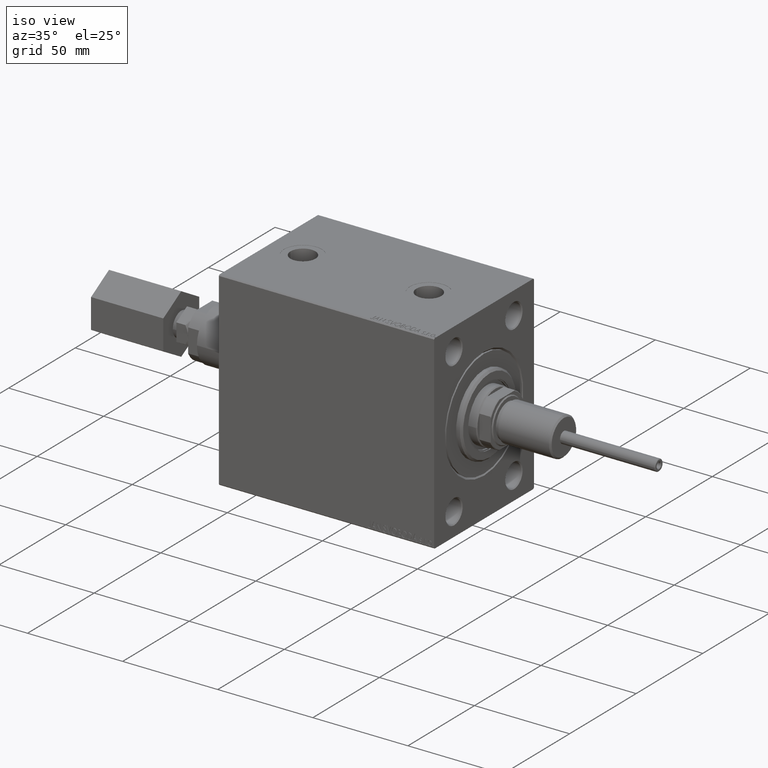
[diagram: clean part render]
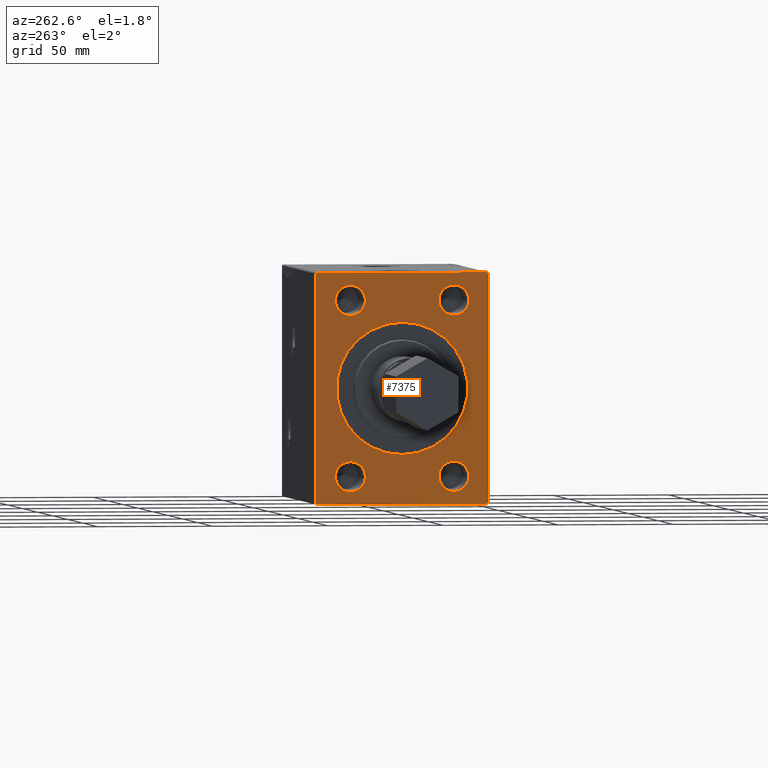
[diagram: tour spotlight — one face highlighted and labeled with its STEP entity id]
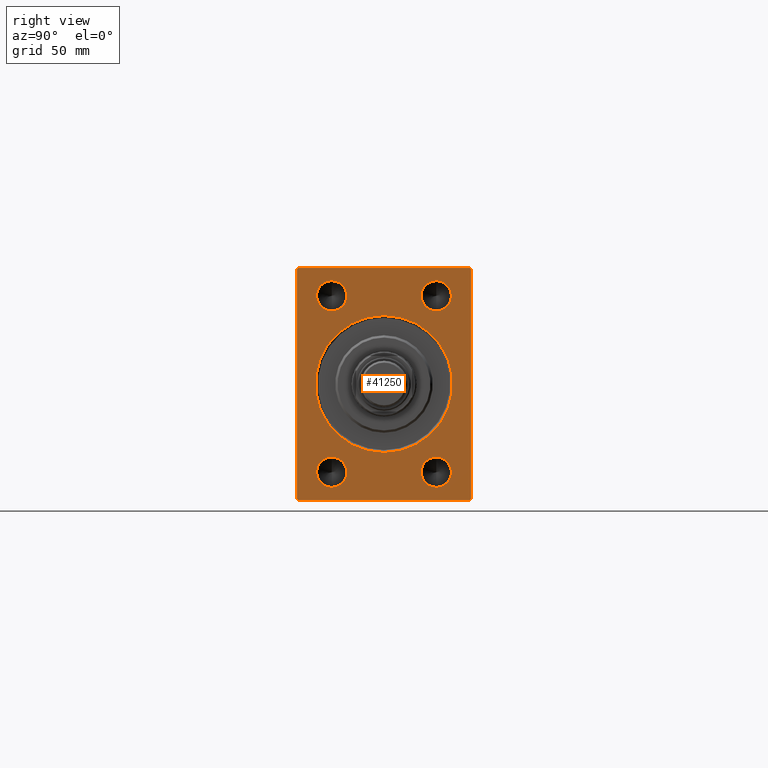
[diagram: tour spotlight — one face highlighted and labeled with its STEP entity id]
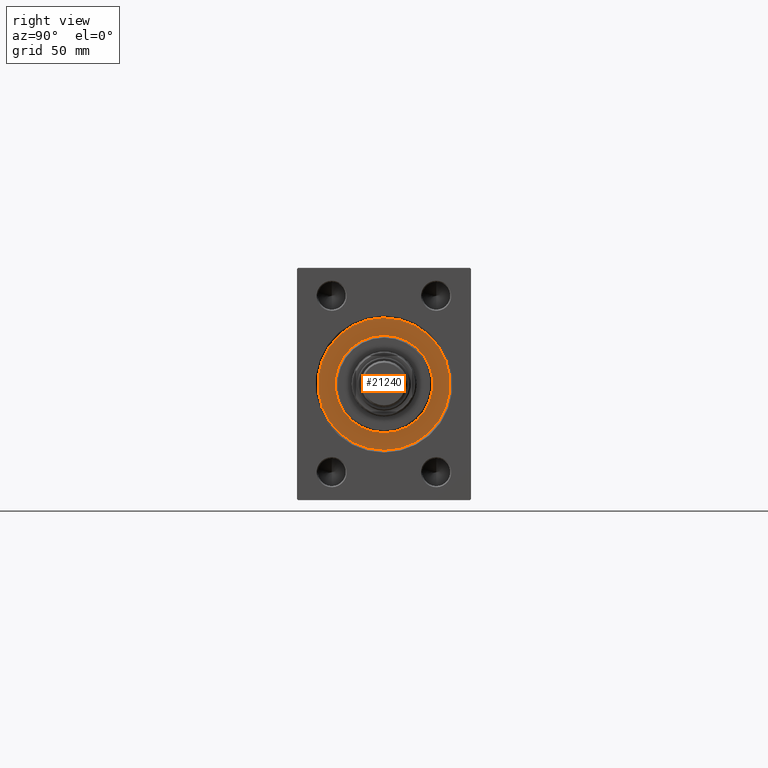
[diagram: tour spotlight — one face highlighted and labeled with its STEP entity id]
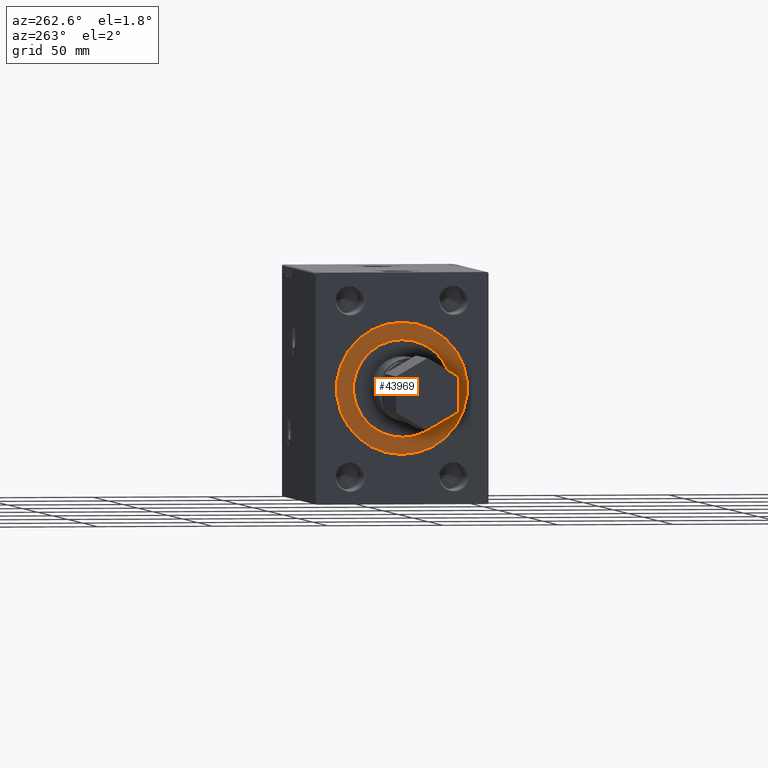
[diagram: tour spotlight — one face highlighted and labeled with its STEP entity id]
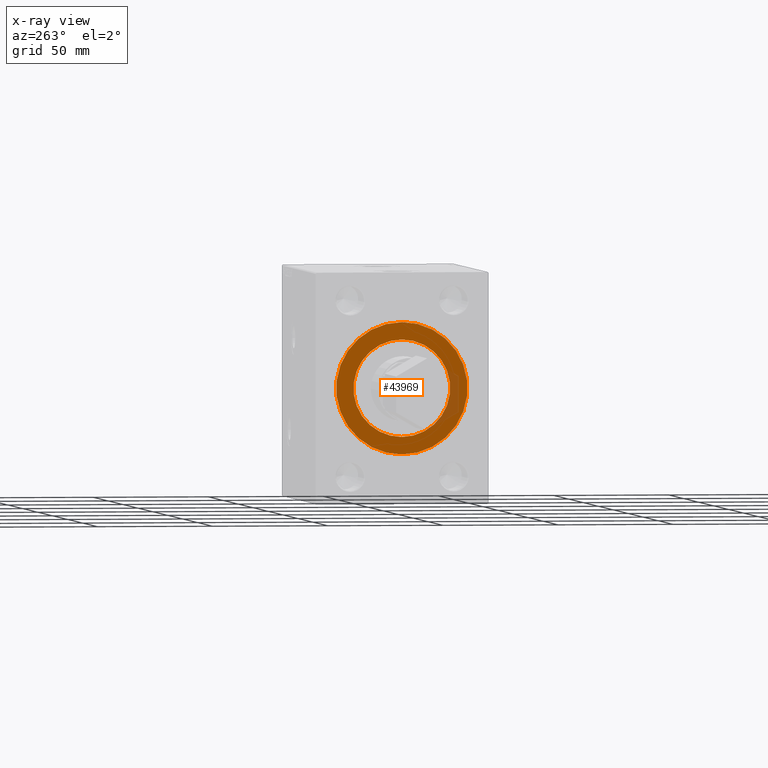
[diagram: x-ray of the same camera — body ghosted, this tour face saturated]
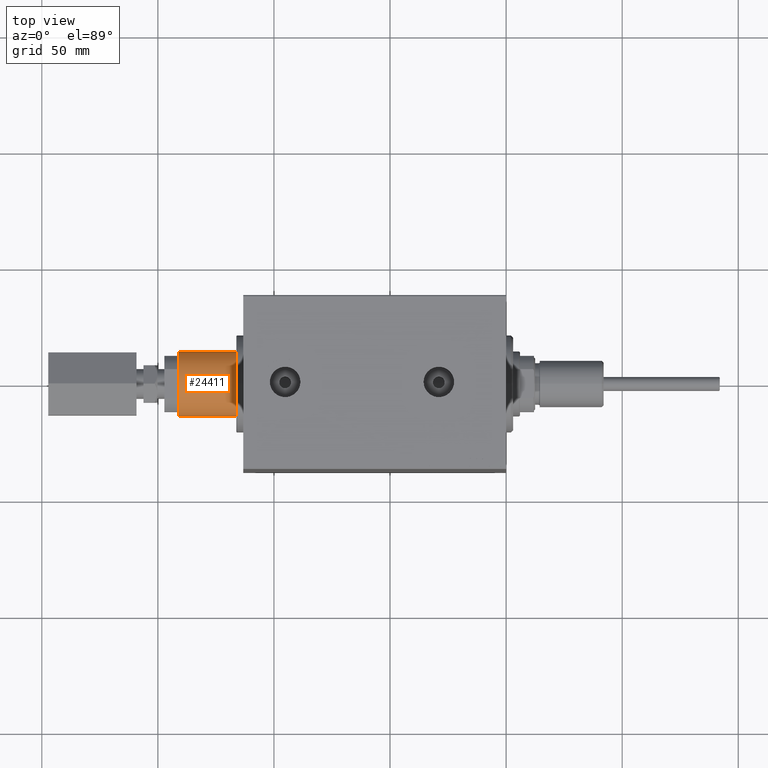
[diagram: tour spotlight — one face highlighted and labeled with its STEP entity id]
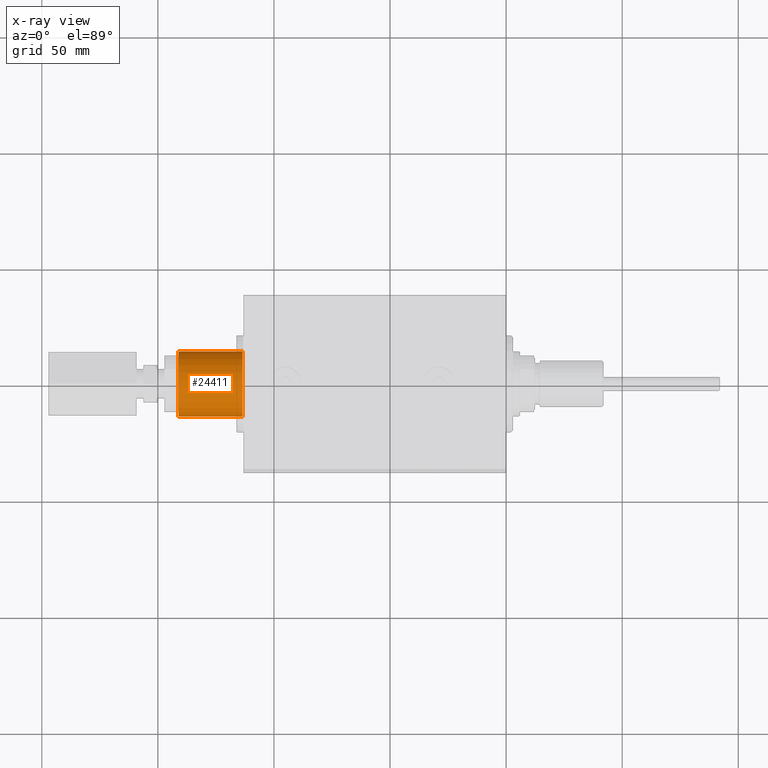
[diagram: x-ray of the same camera — body ghosted, this tour face saturated]
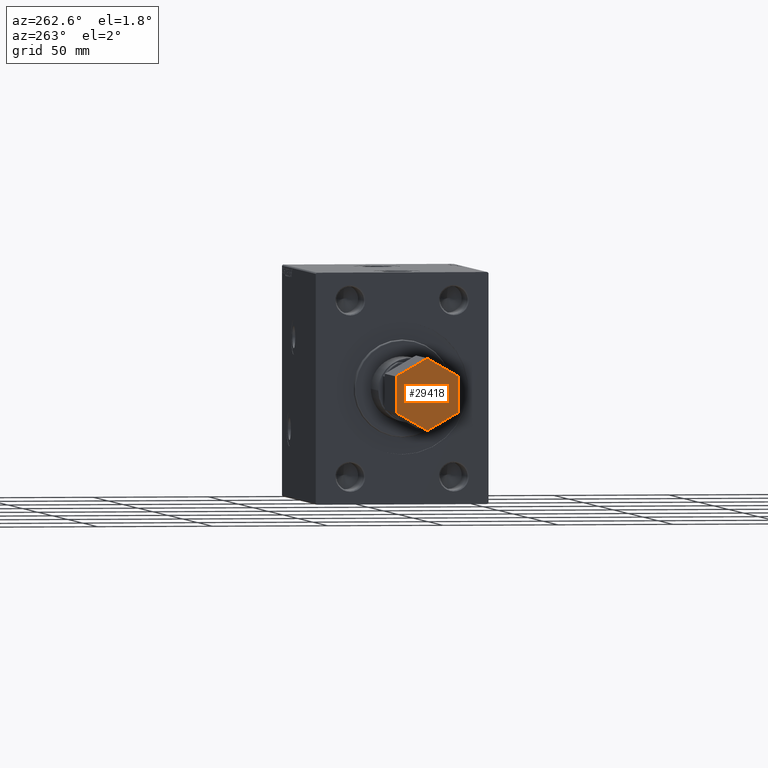
[diagram: tour spotlight — one face highlighted and labeled with its STEP entity id]
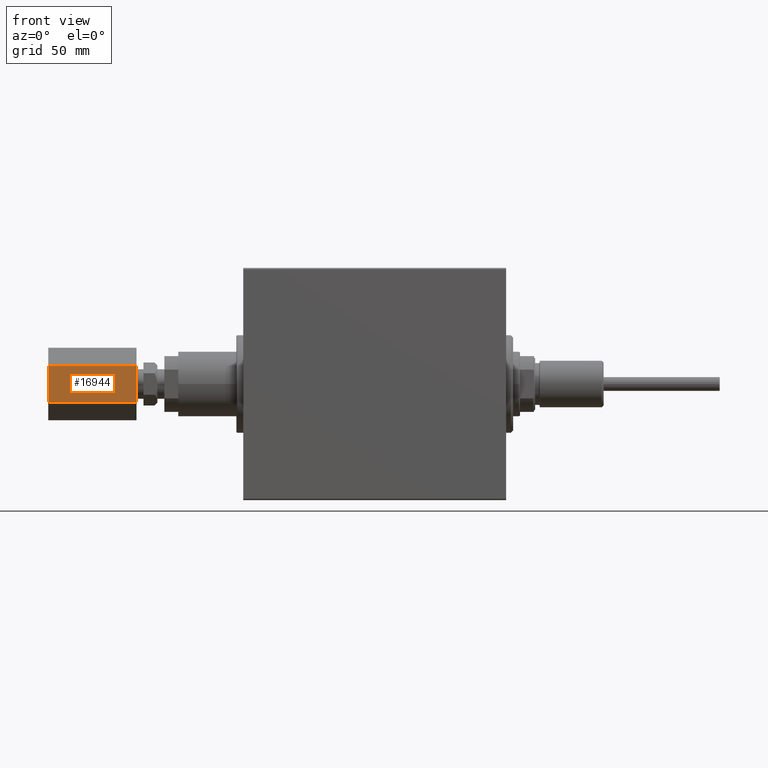
[diagram: tour spotlight — one face highlighted and labeled with its STEP entity id]
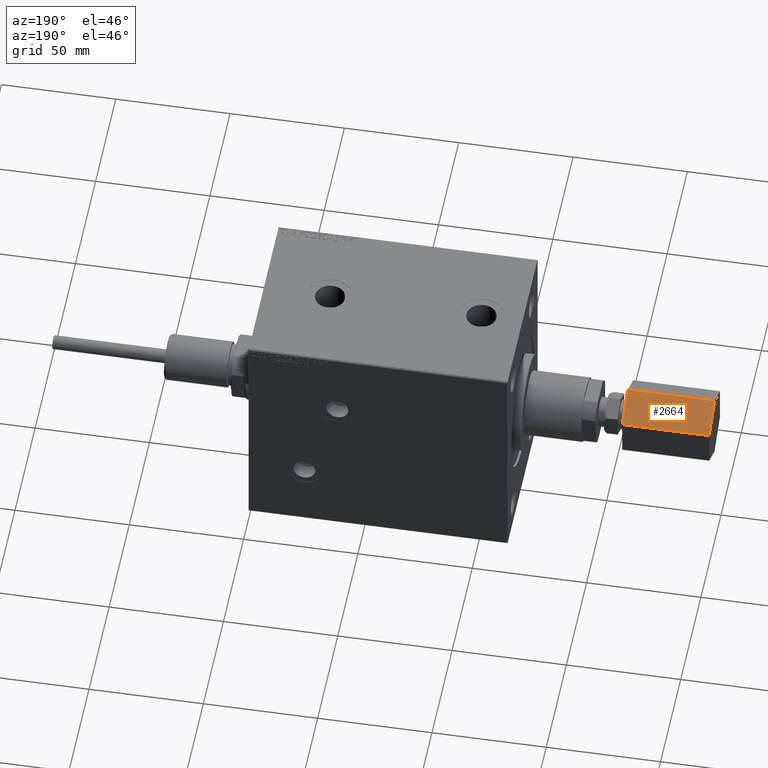
[diagram: tour spotlight — one face highlighted and labeled with its STEP entity id]
A machine part: a face-by-face anatomy tour. The part has 986 B-rep faces; the first image is the clean iso view, then the 8 largest visible faces are spotlighted one at a time (largest first), each with its STEP entity span.

Face 1 — auxiliary view, entity #7375. In plain terms, the highlighted planar face has unit normal (-1, 0, 0).
Definition (entity closure, byte-faithful):
#223 = ORIENTED_EDGE ( 'NONE', *, *, #43376, .T. ) ;
#791 = CARTESIAN_POINT ( 'NONE',  ( 113.2000000000000028, -22.50000000000000711, 44.50000000000003553 ) ) ;
#864 = AXIS2_PLACEMENT_3D ( 'NONE', #28596, #35564, #21151 ) ;
#975 = VERTEX_POINT ( 'NONE', #13576 ) ;
#1421 = CARTESIAN_POINT ( 'NONE',  ( 113.2000000000000028, 37.49999999999998579, 50.00000000000001421 ) ) ;
#1712 = VERTEX_POINT ( 'NONE', #43197 ) ;
#2411 = DIRECTION ( 'NONE',  ( 1.000000000000000000, -0.000000000000000000, -0.000000000000000000 ) ) ;
#2426 = EDGE_LOOP ( 'NONE', ( #17847, #14155 ) ) ;
#2801 = AXIS2_PLACEMENT_3D ( 'NONE', #10239, #21525, #14796 ) ;
#2866 = EDGE_CURVE ( 'NONE', #21347, #39408, #27423, .T. ) ;
#2929 = VERTEX_POINT ( 'NONE', #791 ) ;
#3190 = CARTESIAN_POINT ( 'NONE',  ( 113.2000000000000028, 0.000000000000000000, 0.000000000000000000 ) ) ;
#3494 = DIRECTION ( 'NONE',  ( 0.000000000000000000, 0.000000000000000000, -1.000000000000000000 ) ) ;
#4077 = ORIENTED_EDGE ( 'NONE', *, *, #10926, .F. ) ;
#4629 = CIRCLE ( 'NONE', #31508, 6.500000000000033751 ) ;
#4958 = VERTEX_POINT ( 'NONE', #17778 ) ;
#5016 = LINE ( 'NONE', #20180, #21017 ) ;
#5113 = CARTESIAN_POINT ( 'NONE',  ( 113.2000000000000028, -22.50000000000000711, 38.00000000000000000 ) ) ;
#5130 = CARTESIAN_POINT ( 'NONE',  ( 113.2000000000000028, 0.000000000000000000, -28.50000000000000000 ) ) ;
#5339 = DIRECTION ( 'NONE',  ( 1.000000000000000000, -0.000000000000000000, -0.000000000000000000 ) ) ;
#5464 = CIRCLE ( 'NONE', #864, 28.50000000000000000 ) ;
#5908 = EDGE_CURVE ( 'NONE', #2929, #4958, #32901, .T. ) ;
#5911 = DIRECTION ( 'NONE',  ( -0.000000000000000000, 0.7071067811865474617, 0.7071067811865474617 ) ) ;
#6052 = CARTESIAN_POINT ( 'NONE',  ( 113.2000000000000028, -43.50000000000000000, -43.50000000000000000 ) ) ;
#6934 = VECTOR ( 'NONE', #35145, 1000.000000000000114 ) ;
#7349 = CARTESIAN_POINT ( 'NONE',  ( 113.2000000000000028, -22.50000000000000711, -31.49999999999996447 ) ) ;
#7375 = ADVANCED_FACE ( 'NONE', ( #35880, #32271, #42866, #21473, #9945, #32506 ), #36114, .T. ) ;
#7456 = AXIS2_PLACEMENT_3D ( 'NONE', #20626, #32140, #39351 ) ;
#7571 = ORIENTED_EDGE ( 'NONE', *, *, #35451, .T. ) ;
#8179 = CIRCLE ( 'NONE', #2801, 6.500000000000033751 ) ;
#9746 = CARTESIAN_POINT ( 'NONE',  ( 113.2000000000000028, -22.50000000000000711, -38.00000000000000000 ) ) ;
#9884 = ORIENTED_EDGE ( 'NONE', *, *, #47258, .T. ) ;
#9945 = FACE_BOUND ( 'NONE', #2426, .T. ) ;
#10167 = VERTEX_POINT ( 'NONE', #38504 ) ;
#10239 = CARTESIAN_POINT ( 'NONE',  ( 113.2000000000000028, 22.49999999999999289, 38.00000000000000000 ) ) ;
#10736 = CIRCLE ( 'NONE', #37579, 6.500000000000033751 ) ;
#10926 = EDGE_CURVE ( 'NONE', #11438, #31026, #4629, .T. ) ;
#10994 = EDGE_CURVE ( 'NONE', #10167, #41790, #32244, .T. ) ;
#11308 = ORIENTED_EDGE ( 'NONE', *, *, #19838, .F. ) ;
#11438 = VERTEX_POINT ( 'NONE', #21727 ) ;
#12183 = ORIENTED_EDGE ( 'NONE', *, *, #33745, .F. ) ;
#12892 = VERTEX_POINT ( 'NONE', #13944 ) ;
#13275 = CARTESIAN_POINT ( 'NONE',  ( 113.2000000000000028, -37.50000000000000000, 49.99999999999998579 ) ) ;
#13576 = CARTESIAN_POINT ( 'NONE',  ( 113.2000000000000028, 36.99999999999998579, 50.00000000000001421 ) ) ;
#13944 = CARTESIAN_POINT ( 'NONE',  ( 113.2000000000000028, 37.49999999999998579, 49.50000000000001421 ) ) ;
#14155 = ORIENTED_EDGE ( 'NONE', *, *, #46626, .F. ) ;
#14377 = CARTESIAN_POINT ( 'NONE',  ( 113.2000000000000028, 22.49999999999999289, 38.00000000000000000 ) ) ;
#14549 = AXIS2_PLACEMENT_3D ( 'NONE', #3190, #24597, #47173 ) ;
#14796 = DIRECTION ( 'NONE',  ( 0.000000000000000000, 0.000000000000000000, -1.000000000000000000 ) ) ;
#15889 = LINE ( 'NONE', #27162, #34380 ) ;
#16749 = CIRCLE ( 'NONE', #36657, 6.500000000000033751 ) ;
#17510 = DIRECTION ( 'NONE',  ( 0.000000000000000000, 0.000000000000000000, -1.000000000000000000 ) ) ;
#17778 = CARTESIAN_POINT ( 'NONE',  ( 113.2000000000000028, -22.50000000000000711, 31.49999999999996447 ) ) ;
#17847 = ORIENTED_EDGE ( 'NONE', *, *, #45587, .F. ) ;
#17865 = AXIS2_PLACEMENT_3D ( 'NONE', #46869, #2411, #31733 ) ;
#18053 = EDGE_LOOP ( 'NONE', ( #4077, #19229 ) ) ;
#18070 = DIRECTION ( 'NONE',  ( 0.000000000000000000, 1.000000000000000000, 1.850371707708594316E-16 ) ) ;
#18441 = CARTESIAN_POINT ( 'NONE',  ( 113.2000000000000028, 22.49999999999999289, 31.49999999999996447 ) ) ;
#18587 = EDGE_CURVE ( 'NONE', #33286, #12892, #34512, .T. ) ;
#19078 = VECTOR ( 'NONE', #42110, 1000.000000000000000 ) ;
#19229 = ORIENTED_EDGE ( 'NONE', *, *, #42011, .F. ) ;
#19314 = AXIS2_PLACEMENT_3D ( 'NONE', #9746, #39045, #28473 ) ;
#19357 = VECTOR ( 'NONE', #45895, 1000.000000000000000 ) ;
#19412 = DIRECTION ( 'NONE',  ( 0.000000000000000000, -1.387778780781445429E-16, 1.000000000000000000 ) ) ;
#19493 = LINE ( 'NONE', #1421, #19357 ) ;
#19644 = CARTESIAN_POINT ( 'NONE',  ( 113.2000000000000028, 37.50000000000000000, -50.00000000000000000 ) ) ;
#19838 = EDGE_CURVE ( 'NONE', #4958, #2929, #38565, .T. ) ;
#20180 = CARTESIAN_POINT ( 'NONE',  ( 113.2000000000000028, -43.49999999999999289, 43.49999999999999289 ) ) ;
#20332 = CARTESIAN_POINT ( 'NONE',  ( 113.2000000000000028, 22.49999999999999289, 44.50000000000003553 ) ) ;
#20365 = LINE ( 'NONE', #23472, #23754 ) ;
#20626 = CARTESIAN_POINT ( 'NONE',  ( 113.2000000000000028, -22.50000000000000711, -38.00000000000000000 ) ) ;
#20972 = CARTESIAN_POINT ( 'NONE',  ( 113.2000000000000028, 22.49999999999999289, -44.50000000000003553 ) ) ;
#21017 = VECTOR ( 'NONE', #30730, 1000.000000000000114 ) ;
#21151 = DIRECTION ( 'NONE',  ( 0.000000000000000000, 0.000000000000000000, -1.000000000000000000 ) ) ;
#21180 = EDGE_CURVE ( 'NONE', #39703, #26707, #5016, .T. ) ;
#21347 = VERTEX_POINT ( 'NONE', #37409 ) ;
#21473 = FACE_BOUND ( 'NONE', #18053, .T. ) ;
#21525 = DIRECTION ( 'NONE',  ( 1.000000000000000000, -0.000000000000000000, -0.000000000000000000 ) ) ;
#21727 = CARTESIAN_POINT ( 'NONE',  ( 113.2000000000000028, 22.49999999999999289, -31.49999999999996447 ) ) ;
#23198 = VECTOR ( 'NONE', #19412, 1000.000000000000000 ) ;
#23472 = CARTESIAN_POINT ( 'NONE',  ( 113.2000000000000028, 43.50000000000000711, -43.50000000000000711 ) ) ;
#23754 = VECTOR ( 'NONE', #5911, 1000.000000000000114 ) ;
#24597 = DIRECTION ( 'NONE',  ( 1.000000000000000000, 0.000000000000000000, 0.000000000000000000 ) ) ;
#25059 = ORIENTED_EDGE ( 'NONE', *, *, #41748, .T. ) ;
#25617 = CARTESIAN_POINT ( 'NONE',  ( 113.2000000000000028, 22.49999999999999289, -38.00000000000000000 ) ) ;
#26511 = CARTESIAN_POINT ( 'NONE',  ( 113.2000000000000028, 22.49999999999999289, -38.00000000000000000 ) ) ;
#26707 = VERTEX_POINT ( 'NONE', #41682 ) ;
#26937 = CARTESIAN_POINT ( 'NONE',  ( 113.2000000000000028, 0.000000000000000000, 0.000000000000000000 ) ) ;
#27162 = CARTESIAN_POINT ( 'NONE',  ( 113.2000000000000028, 43.50000000000000000, 43.50000000000000000 ) ) ;
#27398 = ORIENTED_EDGE ( 'NONE', *, *, #5908, .F. ) ;
#27423 = CIRCLE ( 'NONE', #7456, 6.500000000000033751 ) ;
#28461 = CARTESIAN_POINT ( 'NONE',  ( 113.2000000000000028, -37.00000000000000000, 49.99999999999998579 ) ) ;
#28473 = DIRECTION ( 'NONE',  ( 0.000000000000000000, 0.000000000000000000, -1.000000000000000000 ) ) ;
#28596 = CARTESIAN_POINT ( 'NONE',  ( 113.2000000000000028, 0.000000000000000000, 0.000000000000000000 ) ) ;
#29127 = VERTEX_POINT ( 'NONE', #18441 ) ;
#29367 = VERTEX_POINT ( 'NONE', #20332 ) ;
#30062 = EDGE_CURVE ( 'NONE', #29367, #29127, #8179, .T. ) ;
#30294 = DIRECTION ( 'NONE',  ( -0.000000000000000000, -0.7071067811865474617, 0.7071067811865474617 ) ) ;
#30443 = VERTEX_POINT ( 'NONE', #5130 ) ;
#30653 = VERTEX_POINT ( 'NONE', #38477 ) ;
#30730 = DIRECTION ( 'NONE',  ( 0.000000000000000000, -0.7071067811865474617, -0.7071067811865474617 ) ) ;
#30748 = CIRCLE ( 'NONE', #19314, 6.500000000000033751 ) ;
#31026 = VERTEX_POINT ( 'NONE', #20972 ) ;
#31508 = AXIS2_PLACEMENT_3D ( 'NONE', #26511, #5339, #45009 ) ;
#31733 = DIRECTION ( 'NONE',  ( 0.000000000000000000, 0.000000000000000000, -1.000000000000000000 ) ) ;
#32140 = DIRECTION ( 'NONE',  ( 1.000000000000000000, -0.000000000000000000, -0.000000000000000000 ) ) ;
#32235 = CARTESIAN_POINT ( 'NONE',  ( 113.2000000000000028, -37.50000000000000000, -50.00000000000001421 ) ) ;
#32244 = LINE ( 'NONE', #6052, #6934 ) ;
#32271 = FACE_BOUND ( 'NONE', #46681, .T. ) ;
#32506 = FACE_OUTER_BOUND ( 'NONE', #44224, .T. ) ;
#32576 = DIRECTION ( 'NONE',  ( 1.000000000000000000, -0.000000000000000000, -0.000000000000000000 ) ) ;
#32901 = CIRCLE ( 'NONE', #39807, 6.500000000000033751 ) ;
#33286 = VERTEX_POINT ( 'NONE', #36227 ) ;
#33745 = EDGE_CURVE ( 'NONE', #29127, #29367, #16749, .T. ) ;
#33907 = DIRECTION ( 'NONE',  ( 1.000000000000000000, 0.000000000000000000, 0.000000000000000000 ) ) ;
#34380 = VECTOR ( 'NONE', #30294, 1000.000000000000114 ) ;
#34405 = LINE ( 'NONE', #13275, #19078 ) ;
#34427 = DIRECTION ( 'NONE',  ( 1.000000000000000000, -0.000000000000000000, -0.000000000000000000 ) ) ;
#34512 = LINE ( 'NONE', #19644, #23198 ) ;
#34980 = ORIENTED_EDGE ( 'NONE', *, *, #18587, .T. ) ;
#35145 = DIRECTION ( 'NONE',  ( -0.000000000000000000, 0.7071067811865474617, -0.7071067811865474617 ) ) ;
#35451 = EDGE_CURVE ( 'NONE', #26707, #10167, #34405, .T. ) ;
#35564 = DIRECTION ( 'NONE',  ( 1.000000000000000000, 0.000000000000000000, 0.000000000000000000 ) ) ;
#35854 = ORIENTED_EDGE ( 'NONE', *, *, #37879, .T. ) ;
#35880 = FACE_BOUND ( 'NONE', #36100, .T. ) ;
#36100 = EDGE_LOOP ( 'NONE', ( #45347, #12183 ) ) ;
#36114 = PLANE ( 'NONE',  #14549 ) ;
#36214 = AXIS2_PLACEMENT_3D ( 'NONE', #26937, #33907, #37757 ) ;
#36227 = CARTESIAN_POINT ( 'NONE',  ( 113.2000000000000028, 37.50000000000000000, -49.50000000000000000 ) ) ;
#36657 = AXIS2_PLACEMENT_3D ( 'NONE', #14377, #47521, #17510 ) ;
#37409 = CARTESIAN_POINT ( 'NONE',  ( 113.2000000000000028, -22.50000000000000711, -44.50000000000003553 ) ) ;
#37579 = AXIS2_PLACEMENT_3D ( 'NONE', #25617, #32576, #3494 ) ;
#37757 = DIRECTION ( 'NONE',  ( 0.000000000000000000, 0.000000000000000000, -1.000000000000000000 ) ) ;
#37879 = EDGE_CURVE ( 'NONE', #12892, #975, #15889, .T. ) ;
#38477 = CARTESIAN_POINT ( 'NONE',  ( 113.2000000000000028, 37.00000000000000000, -50.00000000000000000 ) ) ;
#38504 = CARTESIAN_POINT ( 'NONE',  ( 113.2000000000000028, -37.50000000000000000, -49.50000000000000000 ) ) ;
#38565 = CIRCLE ( 'NONE', #17865, 6.500000000000033751 ) ;
#39045 = DIRECTION ( 'NONE',  ( 1.000000000000000000, -0.000000000000000000, -0.000000000000000000 ) ) ;
#39146 = EDGE_LOOP ( 'NONE', ( #39267, #39312 ) ) ;
#39267 = ORIENTED_EDGE ( 'NONE', *, *, #45306, .F. ) ;
#39312 = ORIENTED_EDGE ( 'NONE', *, *, #2866, .F. ) ;
#39351 = DIRECTION ( 'NONE',  ( 0.000000000000000000, 0.000000000000000000, -1.000000000000000000 ) ) ;
#39408 = VERTEX_POINT ( 'NONE', #7349 ) ;
#39703 = VERTEX_POINT ( 'NONE', #28461 ) ;
#39807 = AXIS2_PLACEMENT_3D ( 'NONE', #5113, #34427, #45013 ) ;
#39842 = ORIENTED_EDGE ( 'NONE', *, *, #10994, .T. ) ;
#40567 = ORIENTED_EDGE ( 'NONE', *, *, #21180, .T. ) ;
#41468 = VECTOR ( 'NONE', #18070, 1000.000000000000000 ) ;
#41682 = CARTESIAN_POINT ( 'NONE',  ( 113.2000000000000028, -37.50000000000000000, 49.49999999999998579 ) ) ;
#41748 = EDGE_CURVE ( 'NONE', #30653, #33286, #20365, .T. ) ;
#41790 = VERTEX_POINT ( 'NONE', #42943 ) ;
#42011 = EDGE_CURVE ( 'NONE', #31026, #11438, #10736, .T. ) ;
#42110 = DIRECTION ( 'NONE',  ( 0.000000000000000000, 0.000000000000000000, -1.000000000000000000 ) ) ;
#42866 = FACE_BOUND ( 'NONE', #39146, .T. ) ;
#42943 = CARTESIAN_POINT ( 'NONE',  ( 113.2000000000000028, -36.99999999999998579, -50.00000000000001421 ) ) ;
#43197 = CARTESIAN_POINT ( 'NONE',  ( 113.2000000000000028, 3.490243377569956456E-15, 28.50000000000000000 ) ) ;
#43376 = EDGE_CURVE ( 'NONE', #41790, #30653, #43774, .T. ) ;
#43774 = LINE ( 'NONE', #32235, #41468 ) ;
#44224 = EDGE_LOOP ( 'NONE', ( #9884, #40567, #7571, #39842, #223, #25059, #34980, #35854 ) ) ;
#45009 = DIRECTION ( 'NONE',  ( 0.000000000000000000, 0.000000000000000000, -1.000000000000000000 ) ) ;
#45013 = DIRECTION ( 'NONE',  ( 0.000000000000000000, 0.000000000000000000, -1.000000000000000000 ) ) ;
#45306 = EDGE_CURVE ( 'NONE', #39408, #21347, #30748, .T. ) ;
#45347 = ORIENTED_EDGE ( 'NONE', *, *, #30062, .F. ) ;
#45587 = EDGE_CURVE ( 'NONE', #30443, #1712, #5464, .T. ) ;
#45895 = DIRECTION ( 'NONE',  ( 0.000000000000000000, -1.000000000000000000, -3.700743415417189125E-16 ) ) ;
#46626 = EDGE_CURVE ( 'NONE', #1712, #30443, #46955, .T. ) ;
#46681 = EDGE_LOOP ( 'NONE', ( #27398, #11308 ) ) ;
#46869 = CARTESIAN_POINT ( 'NONE',  ( 113.2000000000000028, -22.50000000000000711, 38.00000000000000000 ) ) ;
#46955 = CIRCLE ( 'NONE', #36214, 28.50000000000000000 ) ;
#47173 = DIRECTION ( 'NONE',  ( 0.000000000000000000, 0.000000000000000000, -1.000000000000000000 ) ) ;
#47258 = EDGE_CURVE ( 'NONE', #975, #39703, #19493, .T. ) ;
#47521 = DIRECTION ( 'NONE',  ( 1.000000000000000000, -0.000000000000000000, -0.000000000000000000 ) ) ;

Face 2 — right view, entity #41250. In plain terms, the highlighted planar face has unit normal (-1, 0, 0).
Definition (entity closure, byte-faithful):
#71 = CIRCLE ( 'NONE', #15421, 6.500000000000033751 ) ;
#414 = EDGE_CURVE ( 'NONE', #14692, #26349, #41096, .T. ) ;
#539 = EDGE_CURVE ( 'NONE', #28682, #9228, #18181, .T. ) ;
#624 = CARTESIAN_POINT ( 'NONE',  ( 0.000000000000000000, 22.49999999999999289, -38.00000000000000000 ) ) ;
#640 = ORIENTED_EDGE ( 'NONE', *, *, #37825, .T. ) ;
#860 = EDGE_CURVE ( 'NONE', #5317, #30624, #38887, .T. ) ;
#909 = DIRECTION ( 'NONE',  ( 1.000000000000000000, 0.000000000000000000, 0.000000000000000000 ) ) ;
#1930 = VERTEX_POINT ( 'NONE', #29180 ) ;
#2263 = VECTOR ( 'NONE', #42290, 1000.000000000000000 ) ;
#2268 = CARTESIAN_POINT ( 'NONE',  ( 0.000000000000000000, -37.50000000000000000, -50.00000000000001421 ) ) ;
#2883 = CARTESIAN_POINT ( 'NONE',  ( 0.000000000000000000, -37.00000000000000000, 49.99999999999998579 ) ) ;
#3124 = ORIENTED_EDGE ( 'NONE', *, *, #35329, .T. ) ;
#3670 = CIRCLE ( 'NONE', #22075, 6.500000000000033751 ) ;
#3833 = EDGE_CURVE ( 'NONE', #30624, #5317, #3670, .T. ) ;
#3904 = LINE ( 'NONE', #41389, #6018 ) ;
#4279 = CARTESIAN_POINT ( 'NONE',  ( 0.000000000000000000, -22.50000000000000711, -38.00000000000000000 ) ) ;
#4765 = DIRECTION ( 'NONE',  ( 1.000000000000000000, 0.000000000000000000, 0.000000000000000000 ) ) ;
#5240 = CARTESIAN_POINT ( 'NONE',  ( 0.000000000000000000, 37.49999999999998579, 49.50000000000001421 ) ) ;
#5317 = VERTEX_POINT ( 'NONE', #24204 ) ;
#5869 = LINE ( 'NONE', #2268, #44935 ) ;
#6018 = VECTOR ( 'NONE', #15928, 1000.000000000000114 ) ;
#6377 = LINE ( 'NONE', #13609, #30996 ) ;
#6598 = VERTEX_POINT ( 'NONE', #2883 ) ;
#6674 = VERTEX_POINT ( 'NONE', #13721 ) ;
#6721 = EDGE_CURVE ( 'NONE', #9228, #28682, #17589, .T. ) ;
#6727 = VERTEX_POINT ( 'NONE', #14196 ) ;
#6812 = AXIS2_PLACEMENT_3D ( 'NONE', #10981, #29470, #36205 ) ;
#7164 = ORIENTED_EDGE ( 'NONE', *, *, #18868, .T. ) ;
#7171 = DIRECTION ( 'NONE',  ( 0.000000000000000000, 0.000000000000000000, -1.000000000000000000 ) ) ;
#7199 = DIRECTION ( 'NONE',  ( 1.000000000000000000, 0.000000000000000000, 0.000000000000000000 ) ) ;
#7227 = DIRECTION ( 'NONE',  ( 1.000000000000000000, 0.000000000000000000, 0.000000000000000000 ) ) ;
#7363 = CIRCLE ( 'NONE', #36525, 29.50000000000004263 ) ;
#8719 = CARTESIAN_POINT ( 'NONE',  ( 0.000000000000000000, 37.50000000000000000, -49.50000000000000000 ) ) ;
#8759 = EDGE_CURVE ( 'NONE', #28911, #6598, #46596, .T. ) ;
#8855 = EDGE_CURVE ( 'NONE', #1930, #35575, #18889, .T. ) ;
#9228 = VERTEX_POINT ( 'NONE', #24012 ) ;
#10310 = ORIENTED_EDGE ( 'NONE', *, *, #12982, .T. ) ;
#10315 = EDGE_LOOP ( 'NONE', ( #11552, #18284 ) ) ;
#10494 = CARTESIAN_POINT ( 'NONE',  ( 0.000000000000000000, -22.50000000000000711, 38.00000000000000000 ) ) ;
#10981 = CARTESIAN_POINT ( 'NONE',  ( 0.000000000000000000, -22.50000000000000711, -38.00000000000000000 ) ) ;
#11370 = EDGE_CURVE ( 'NONE', #20100, #6674, #71, .T. ) ;
#11552 = ORIENTED_EDGE ( 'NONE', *, *, #6721, .T. ) ;
#11661 = VECTOR ( 'NONE', #33128, 1000.000000000000114 ) ;
#11987 = FACE_OUTER_BOUND ( 'NONE', #18716, .T. ) ;
#12605 = VERTEX_POINT ( 'NONE', #37250 ) ;
#12861 = VECTOR ( 'NONE', #21109, 1000.000000000000114 ) ;
#12875 = DIRECTION ( 'NONE',  ( 1.000000000000000000, 0.000000000000000000, 0.000000000000000000 ) ) ;
#12982 = EDGE_CURVE ( 'NONE', #14692, #6727, #44666, .T. ) ;
#13329 = ORIENTED_EDGE ( 'NONE', *, *, #36300, .T. ) ;
#13609 = CARTESIAN_POINT ( 'NONE',  ( 0.000000000000000000, -37.50000000000000000, 49.49999999999998579 ) ) ;
#13721 = CARTESIAN_POINT ( 'NONE',  ( 0.000000000000000000, -22.50000000000000711, -44.50000000000003553 ) ) ;
#13730 = CARTESIAN_POINT ( 'NONE',  ( 0.000000000000000000, 0.000000000000000000, 29.50000000000004263 ) ) ;
#14196 = CARTESIAN_POINT ( 'NONE',  ( 0.000000000000000000, 37.00000000000000000, -50.00000000000000000 ) ) ;
#14655 = CARTESIAN_POINT ( 'NONE',  ( 0.000000000000000000, 36.99999999999998579, 50.00000000000001421 ) ) ;
#14692 = VERTEX_POINT ( 'NONE', #8719 ) ;
#15047 = CARTESIAN_POINT ( 'NONE',  ( 0.000000000000000000, -37.50000000000000000, 49.99999999999998579 ) ) ;
#15303 = CIRCLE ( 'NONE', #16094, 29.50000000000004263 ) ;
#15421 = AXIS2_PLACEMENT_3D ( 'NONE', #4279, #909, #15596 ) ;
#15596 = DIRECTION ( 'NONE',  ( 0.000000000000000000, 0.000000000000000000, -1.000000000000000000 ) ) ;
#15897 = EDGE_CURVE ( 'NONE', #25080, #17509, #43118, .T. ) ;
#15928 = DIRECTION ( 'NONE',  ( -0.000000000000000000, 0.7071067811865474617, -0.7071067811865474617 ) ) ;
#16094 = AXIS2_PLACEMENT_3D ( 'NONE', #19262, #23327, #41115 ) ;
#16816 = CIRCLE ( 'NONE', #6812, 6.500000000000033751 ) ;
#16869 = ORIENTED_EDGE ( 'NONE', *, *, #33262, .T. ) ;
#17287 = ORIENTED_EDGE ( 'NONE', *, *, #860, .T. ) ;
#17509 = VERTEX_POINT ( 'NONE', #22563 ) ;
#17589 = CIRCLE ( 'NONE', #31398, 6.500000000000033751 ) ;
#18181 = CIRCLE ( 'NONE', #37327, 6.500000000000033751 ) ;
#18284 = ORIENTED_EDGE ( 'NONE', *, *, #539, .T. ) ;
#18493 = CARTESIAN_POINT ( 'NONE',  ( 0.000000000000000000, 37.50000000000000000, -49.50000000000000000 ) ) ;
#18716 = EDGE_LOOP ( 'NONE', ( #36565, #30081, #25126, #3124, #24040, #10310, #27612, #16869 ) ) ;
#18843 = CARTESIAN_POINT ( 'NONE',  ( 0.000000000000000000, 22.49999999999999289, -44.50000000000003553 ) ) ;
#18868 = EDGE_CURVE ( 'NONE', #17509, #25080, #43184, .T. ) ;
#18889 = LINE ( 'NONE', #15047, #37609 ) ;
#19262 = CARTESIAN_POINT ( 'NONE',  ( 0.000000000000000000, 0.000000000000000000, 0.000000000000000000 ) ) ;
#19477 = ORIENTED_EDGE ( 'NONE', *, *, #11370, .T. ) ;
#19684 = DIRECTION ( 'NONE',  ( 0.000000000000000000, 0.000000000000000000, -1.000000000000000000 ) ) ;
#20100 = VERTEX_POINT ( 'NONE', #27290 ) ;
#20323 = DIRECTION ( 'NONE',  ( 0.000000000000000000, 1.000000000000000000, 1.850371707708594316E-16 ) ) ;
#20772 = DIRECTION ( 'NONE',  ( 0.000000000000000000, 0.000000000000000000, -1.000000000000000000 ) ) ;
#20957 = VERTEX_POINT ( 'NONE', #13730 ) ;
#21059 = EDGE_LOOP ( 'NONE', ( #33437, #7164 ) ) ;
#21109 = DIRECTION ( 'NONE',  ( -0.000000000000000000, -0.7071067811865474617, 0.7071067811865474617 ) ) ;
#21239 = DIRECTION ( 'NONE',  ( 1.000000000000000000, 0.000000000000000000, 0.000000000000000000 ) ) ;
#21915 = EDGE_LOOP ( 'NONE', ( #19477, #13329 ) ) ;
#22075 = AXIS2_PLACEMENT_3D ( 'NONE', #29108, #7227, #43772 ) ;
#22167 = EDGE_LOOP ( 'NONE', ( #17287, #30725 ) ) ;
#22249 = DIRECTION ( 'NONE',  ( 0.000000000000000000, 0.000000000000000000, -1.000000000000000000 ) ) ;
#22445 = AXIS2_PLACEMENT_3D ( 'NONE', #46241, #21239, #20772 ) ;
#22563 = CARTESIAN_POINT ( 'NONE',  ( 0.000000000000000000, 22.49999999999999289, 31.49999999999996447 ) ) ;
#23327 = DIRECTION ( 'NONE',  ( 1.000000000000000000, 0.000000000000000000, 0.000000000000000000 ) ) ;
#23936 = EDGE_CURVE ( 'NONE', #1930, #6598, #6377, .T. ) ;
#24012 = CARTESIAN_POINT ( 'NONE',  ( 0.000000000000000000, 22.49999999999999289, -31.49999999999996447 ) ) ;
#24040 = ORIENTED_EDGE ( 'NONE', *, *, #414, .F. ) ;
#24204 = CARTESIAN_POINT ( 'NONE',  ( 0.000000000000000000, -22.50000000000000711, 44.50000000000003553 ) ) ;
#25080 = VERTEX_POINT ( 'NONE', #33446 ) ;
#25126 = ORIENTED_EDGE ( 'NONE', *, *, #8759, .F. ) ;
#25152 = DIRECTION ( 'NONE',  ( 1.000000000000000000, 0.000000000000000000, 0.000000000000000000 ) ) ;
#25420 = CARTESIAN_POINT ( 'NONE',  ( 0.000000000000000000, -36.99999999999998579, -50.00000000000001421 ) ) ;
#25589 = VERTEX_POINT ( 'NONE', #35460 ) ;
#25600 = DIRECTION ( 'NONE',  ( -0.000000000000000000, 0.7071067811865474617, 0.7071067811865474617 ) ) ;
#25679 = CARTESIAN_POINT ( 'NONE',  ( 0.000000000000000000, 22.49999999999999289, -38.00000000000000000 ) ) ;
#26349 = VERTEX_POINT ( 'NONE', #5240 ) ;
#26357 = DIRECTION ( 'NONE',  ( 0.000000000000000000, 0.000000000000000000, -1.000000000000000000 ) ) ;
#26400 = CARTESIAN_POINT ( 'NONE',  ( 0.000000000000000000, 22.49999999999999289, 38.00000000000000000 ) ) ;
#26638 = FACE_BOUND ( 'NONE', #22167, .T. ) ;
#26878 = PLANE ( 'NONE',  #29117 ) ;
#27290 = CARTESIAN_POINT ( 'NONE',  ( 0.000000000000000000, -22.50000000000000711, -31.49999999999996447 ) ) ;
#27519 = DIRECTION ( 'NONE',  ( 0.000000000000000000, 0.000000000000000000, -1.000000000000000000 ) ) ;
#27612 = ORIENTED_EDGE ( 'NONE', *, *, #28437, .F. ) ;
#27851 = CARTESIAN_POINT ( 'NONE',  ( 0.000000000000000000, 37.49999999999998579, 50.00000000000001421 ) ) ;
#28437 = EDGE_CURVE ( 'NONE', #25589, #6727, #5869, .T. ) ;
#28682 = VERTEX_POINT ( 'NONE', #18843 ) ;
#28784 = LINE ( 'NONE', #25420, #12861 ) ;
#28911 = VERTEX_POINT ( 'NONE', #14655 ) ;
#29108 = CARTESIAN_POINT ( 'NONE',  ( 0.000000000000000000, -22.50000000000000711, 38.00000000000000000 ) ) ;
#29117 = AXIS2_PLACEMENT_3D ( 'NONE', #34079, #4765, #19684 ) ;
#29180 = CARTESIAN_POINT ( 'NONE',  ( 0.000000000000000000, -37.50000000000000000, 49.49999999999998579 ) ) ;
#29361 = EDGE_CURVE ( 'NONE', #20957, #12605, #7363, .T. ) ;
#29470 = DIRECTION ( 'NONE',  ( 1.000000000000000000, 0.000000000000000000, 0.000000000000000000 ) ) ;
#29512 = EDGE_LOOP ( 'NONE', ( #37403, #640 ) ) ;
#30081 = ORIENTED_EDGE ( 'NONE', *, *, #23936, .T. ) ;
#30624 = VERTEX_POINT ( 'NONE', #35110 ) ;
#30725 = ORIENTED_EDGE ( 'NONE', *, *, #3833, .T. ) ;
#30996 = VECTOR ( 'NONE', #25600, 1000.000000000000114 ) ;
#31119 = CARTESIAN_POINT ( 'NONE',  ( 0.000000000000000000, 0.000000000000000000, 0.000000000000000000 ) ) ;
#31187 = FACE_BOUND ( 'NONE', #10315, .T. ) ;
#31398 = AXIS2_PLACEMENT_3D ( 'NONE', #624, #7199, #26357 ) ;
#32178 = DIRECTION ( 'NONE',  ( 1.000000000000000000, 0.000000000000000000, 0.000000000000000000 ) ) ;
#33128 = DIRECTION ( 'NONE',  ( 0.000000000000000000, -0.7071067811865474617, -0.7071067811865474617 ) ) ;
#33262 = EDGE_CURVE ( 'NONE', #25589, #35575, #28784, .T. ) ;
#33437 = ORIENTED_EDGE ( 'NONE', *, *, #15897, .T. ) ;
#33446 = CARTESIAN_POINT ( 'NONE',  ( 0.000000000000000000, 22.49999999999999289, 44.50000000000003553 ) ) ;
#34079 = CARTESIAN_POINT ( 'NONE',  ( 0.000000000000000000, 0.000000000000000000, 0.000000000000000000 ) ) ;
#35110 = CARTESIAN_POINT ( 'NONE',  ( 0.000000000000000000, -22.50000000000000711, 31.49999999999996447 ) ) ;
#35329 = EDGE_CURVE ( 'NONE', #28911, #26349, #3904, .T. ) ;
#35418 = AXIS2_PLACEMENT_3D ( 'NONE', #26400, #47325, #36977 ) ;
#35460 = CARTESIAN_POINT ( 'NONE',  ( 0.000000000000000000, -36.99999999999998579, -50.00000000000001421 ) ) ;
#35575 = VERTEX_POINT ( 'NONE', #40390 ) ;
#36205 = DIRECTION ( 'NONE',  ( 0.000000000000000000, 0.000000000000000000, -1.000000000000000000 ) ) ;
#36300 = EDGE_CURVE ( 'NONE', #6674, #20100, #16816, .T. ) ;
#36525 = AXIS2_PLACEMENT_3D ( 'NONE', #31119, #12875, #27519 ) ;
#36565 = ORIENTED_EDGE ( 'NONE', *, *, #8855, .F. ) ;
#36977 = DIRECTION ( 'NONE',  ( 0.000000000000000000, 0.000000000000000000, -1.000000000000000000 ) ) ;
#37250 = CARTESIAN_POINT ( 'NONE',  ( 0.000000000000000000, 3.612708057484697126E-15, -29.50000000000004263 ) ) ;
#37327 = AXIS2_PLACEMENT_3D ( 'NONE', #25679, #32178, #7171 ) ;
#37403 = ORIENTED_EDGE ( 'NONE', *, *, #29361, .T. ) ;
#37609 = VECTOR ( 'NONE', #22249, 1000.000000000000000 ) ;
#37825 = EDGE_CURVE ( 'NONE', #12605, #20957, #15303, .T. ) ;
#38092 = VECTOR ( 'NONE', #45171, 1000.000000000000000 ) ;
#38404 = FACE_BOUND ( 'NONE', #29512, .T. ) ;
#38887 = CIRCLE ( 'NONE', #39633, 6.500000000000033751 ) ;
#39633 = AXIS2_PLACEMENT_3D ( 'NONE', #10494, #25152, #39802 ) ;
#39802 = DIRECTION ( 'NONE',  ( 0.000000000000000000, 0.000000000000000000, -1.000000000000000000 ) ) ;
#40390 = CARTESIAN_POINT ( 'NONE',  ( 0.000000000000000000, -37.50000000000000000, -49.50000000000000000 ) ) ;
#41096 = LINE ( 'NONE', #44703, #38092 ) ;
#41115 = DIRECTION ( 'NONE',  ( 0.000000000000000000, 0.000000000000000000, -1.000000000000000000 ) ) ;
#41250 = ADVANCED_FACE ( 'NONE', ( #38404, #41299, #26638, #41781, #31187, #11987 ), #26878, .F. ) ;
#41299 = FACE_BOUND ( 'NONE', #21915, .T. ) ;
#41389 = CARTESIAN_POINT ( 'NONE',  ( 0.000000000000000000, 36.99999999999998579, 50.00000000000001421 ) ) ;
#41781 = FACE_BOUND ( 'NONE', #21059, .T. ) ;
#42290 = DIRECTION ( 'NONE',  ( 0.000000000000000000, -1.000000000000000000, -3.700743415417189125E-16 ) ) ;
#43118 = CIRCLE ( 'NONE', #35418, 6.500000000000033751 ) ;
#43184 = CIRCLE ( 'NONE', #22445, 6.500000000000033751 ) ;
#43772 = DIRECTION ( 'NONE',  ( 0.000000000000000000, 0.000000000000000000, -1.000000000000000000 ) ) ;
#44666 = LINE ( 'NONE', #18493, #11661 ) ;
#44703 = CARTESIAN_POINT ( 'NONE',  ( 0.000000000000000000, 37.50000000000000000, -50.00000000000000000 ) ) ;
#44935 = VECTOR ( 'NONE', #20323, 1000.000000000000000 ) ;
#45171 = DIRECTION ( 'NONE',  ( 0.000000000000000000, -1.387778780781445429E-16, 1.000000000000000000 ) ) ;
#46241 = CARTESIAN_POINT ( 'NONE',  ( 0.000000000000000000, 22.49999999999999289, 38.00000000000000000 ) ) ;
#46596 = LINE ( 'NONE', #27851, #2263 ) ;
#47325 = DIRECTION ( 'NONE',  ( 1.000000000000000000, 0.000000000000000000, 0.000000000000000000 ) ) ;

Face 3 — right view, entity #21240. In plain terms, the highlighted planar face has unit normal (-1, 0, 0).
Definition (entity closure, byte-faithful):
#174 = VERTEX_POINT ( 'NONE', #40337 ) ;
#197 = CARTESIAN_POINT ( 'NONE',  ( 0.000000000000000000, 0.000000000000000000, 0.000000000000000000 ) ) ;
#523 = CIRCLE ( 'NONE', #41228, 28.50000000000000000 ) ;
#2731 = VERTEX_POINT ( 'NONE', #11516 ) ;
#4865 = AXIS2_PLACEMENT_3D ( 'NONE', #6204, #47059, #10530 ) ;
#6204 = CARTESIAN_POINT ( 'NONE',  ( 0.000000000000000000, 0.000000000000000000, 0.000000000000000000 ) ) ;
#6385 = AXIS2_PLACEMENT_3D ( 'NONE', #41853, #12775, #34871 ) ;
#6673 = FACE_OUTER_BOUND ( 'NONE', #13148, .T. ) ;
#7180 = DIRECTION ( 'NONE',  ( 0.000000000000000000, 0.000000000000000000, -1.000000000000000000 ) ) ;
#10530 = DIRECTION ( 'NONE',  ( 0.000000000000000000, 0.000000000000000000, 1.000000000000000000 ) ) ;
#11516 = CARTESIAN_POINT ( 'NONE',  ( 0.000000000000000000, 0.000000000000000000, 21.00000000000000000 ) ) ;
#12708 = DIRECTION ( 'NONE',  ( -1.000000000000000000, 0.000000000000000000, 0.000000000000000000 ) ) ;
#12775 = DIRECTION ( 'NONE',  ( 1.000000000000000000, -0.000000000000000000, 0.000000000000000000 ) ) ;
#13148 = EDGE_LOOP ( 'NONE', ( #16868, #30038 ) ) ;
#14430 = EDGE_LOOP ( 'NONE', ( #37517, #32500 ) ) ;
#15109 = EDGE_CURVE ( 'NONE', #174, #2731, #31538, .T. ) ;
#16282 = AXIS2_PLACEMENT_3D ( 'NONE', #16794, #12708, #27352 ) ;
#16794 = CARTESIAN_POINT ( 'NONE',  ( 0.000000000000000000, 0.000000000000000000, 0.000000000000000000 ) ) ;
#16868 = ORIENTED_EDGE ( 'NONE', *, *, #22303, .F. ) ;
#17274 = PLANE ( 'NONE',  #4865 ) ;
#17588 = EDGE_CURVE ( 'NONE', #30024, #43412, #39293, .T. ) ;
#18714 = CARTESIAN_POINT ( 'NONE',  ( 0.000000000000000000, 0.000000000000000000, 0.000000000000000000 ) ) ;
#20862 = EDGE_CURVE ( 'NONE', #2731, #174, #27103, .T. ) ;
#21240 = ADVANCED_FACE ( 'NONE', ( #31688, #6673 ), #17274, .F. ) ;
#21848 = DIRECTION ( 'NONE',  ( 1.000000000000000000, -0.000000000000000000, 0.000000000000000000 ) ) ;
#22303 = EDGE_CURVE ( 'NONE', #43412, #30024, #523, .T. ) ;
#26141 = DIRECTION ( 'NONE',  ( -1.000000000000000000, 0.000000000000000000, 0.000000000000000000 ) ) ;
#27103 = CIRCLE ( 'NONE', #6385, 21.00000000000000000 ) ;
#27352 = DIRECTION ( 'NONE',  ( 0.000000000000000000, 0.000000000000000000, 1.000000000000000000 ) ) ;
#28401 = CARTESIAN_POINT ( 'NONE',  ( 0.000000000000000000, 0.000000000000000000, -28.50000000000000000 ) ) ;
#30024 = VERTEX_POINT ( 'NONE', #42452 ) ;
#30038 = ORIENTED_EDGE ( 'NONE', *, *, #17588, .F. ) ;
#31538 = CIRCLE ( 'NONE', #34585, 21.00000000000000000 ) ;
#31688 = FACE_BOUND ( 'NONE', #14430, .T. ) ;
#32500 = ORIENTED_EDGE ( 'NONE', *, *, #15109, .F. ) ;
#34585 = AXIS2_PLACEMENT_3D ( 'NONE', #197, #21848, #7180 ) ;
#34871 = DIRECTION ( 'NONE',  ( 0.000000000000000000, 0.000000000000000000, -1.000000000000000000 ) ) ;
#37517 = ORIENTED_EDGE ( 'NONE', *, *, #20862, .F. ) ;
#39293 = CIRCLE ( 'NONE', #16282, 28.50000000000000000 ) ;
#40337 = CARTESIAN_POINT ( 'NONE',  ( 0.000000000000000000, 2.571758278209441661E-15, -21.00000000000000000 ) ) ;
#40572 = DIRECTION ( 'NONE',  ( 0.000000000000000000, 0.000000000000000000, 1.000000000000000000 ) ) ;
#41228 = AXIS2_PLACEMENT_3D ( 'NONE', #18714, #26141, #40572 ) ;
#41853 = CARTESIAN_POINT ( 'NONE',  ( 0.000000000000000000, 0.000000000000000000, 0.000000000000000000 ) ) ;
#42452 = CARTESIAN_POINT ( 'NONE',  ( 0.000000000000000000, 3.490243377569956456E-15, 28.50000000000000000 ) ) ;
#43412 = VERTEX_POINT ( 'NONE', #28401 ) ;
#47059 = DIRECTION ( 'NONE',  ( -1.000000000000000000, 0.000000000000000000, 0.000000000000000000 ) ) ;

Face 4 — auxiliary view, entity #43969. An x-ray twin of the same camera follows (body ghosted, this face saturated) — the face is partly hidden behind the body. In plain terms, the highlighted planar face has unit normal (-1, 0, 0).
Definition (entity closure, byte-faithful):
#956 = EDGE_CURVE ( 'NONE', #31445, #34631, #18937, .T. ) ;
#1947 = CARTESIAN_POINT ( 'NONE',  ( 112.2000000000000028, 0.000000000000000000, 0.000000000000000000 ) ) ;
#2116 = ORIENTED_EDGE ( 'NONE', *, *, #42835, .F. ) ;
#2297 = DIRECTION ( 'NONE',  ( 0.000000000000000000, 0.000000000000000000, -1.000000000000000000 ) ) ;
#3923 = FACE_BOUND ( 'NONE', #26906, .T. ) ;
#4061 = VERTEX_POINT ( 'NONE', #35074 ) ;
#6319 = CIRCLE ( 'NONE', #24749, 28.50000000000000000 ) ;
#7102 = ORIENTED_EDGE ( 'NONE', *, *, #956, .F. ) ;
#8110 = CARTESIAN_POINT ( 'NONE',  ( 112.2000000000000028, 0.000000000000000000, 21.00000000000000000 ) ) ;
#10334 = CIRCLE ( 'NONE', #37178, 28.50000000000000000 ) ;
#11910 = VERTEX_POINT ( 'NONE', #29052 ) ;
#13972 = ORIENTED_EDGE ( 'NONE', *, *, #18650, .T. ) ;
#14293 = FACE_OUTER_BOUND ( 'NONE', #14391, .T. ) ;
#14391 = EDGE_LOOP ( 'NONE', ( #13972, #36584 ) ) ;
#14536 = DIRECTION ( 'NONE',  ( 0.000000000000000000, 0.000000000000000000, -1.000000000000000000 ) ) ;
#18373 = PLANE ( 'NONE',  #38408 ) ;
#18427 = CIRCLE ( 'NONE', #34527, 21.00000000000000000 ) ;
#18650 = EDGE_CURVE ( 'NONE', #11910, #4061, #6319, .T. ) ;
#18937 = CIRCLE ( 'NONE', #30404, 21.00000000000000000 ) ;
#20313 = DIRECTION ( 'NONE',  ( 0.000000000000000000, 0.000000000000000000, -1.000000000000000000 ) ) ;
#20474 = DIRECTION ( 'NONE',  ( 1.000000000000000000, 0.000000000000000000, 0.000000000000000000 ) ) ;
#22017 = DIRECTION ( 'NONE',  ( 1.000000000000000000, 0.000000000000000000, 0.000000000000000000 ) ) ;
#22253 = DIRECTION ( 'NONE',  ( 0.000000000000000000, 0.000000000000000000, -1.000000000000000000 ) ) ;
#24749 = AXIS2_PLACEMENT_3D ( 'NONE', #35236, #39781, #2297 ) ;
#25181 = EDGE_CURVE ( 'NONE', #4061, #11910, #10334, .T. ) ;
#26906 = EDGE_LOOP ( 'NONE', ( #2116, #7102 ) ) ;
#27503 = DIRECTION ( 'NONE',  ( 1.000000000000000000, 0.000000000000000000, 0.000000000000000000 ) ) ;
#29052 = CARTESIAN_POINT ( 'NONE',  ( 112.2000000000000028, 0.000000000000000000, -28.50000000000000000 ) ) ;
#30404 = AXIS2_PLACEMENT_3D ( 'NONE', #34472, #27503, #20313 ) ;
#31445 = VERTEX_POINT ( 'NONE', #37623 ) ;
#31658 = CARTESIAN_POINT ( 'NONE',  ( 112.2000000000000028, 0.000000000000000000, 0.000000000000000000 ) ) ;
#34472 = CARTESIAN_POINT ( 'NONE',  ( 112.2000000000000028, 0.000000000000000000, 0.000000000000000000 ) ) ;
#34527 = AXIS2_PLACEMENT_3D ( 'NONE', #43893, #22017, #22253 ) ;
#34631 = VERTEX_POINT ( 'NONE', #8110 ) ;
#34880 = DIRECTION ( 'NONE',  ( 0.000000000000000000, 0.000000000000000000, -1.000000000000000000 ) ) ;
#35074 = CARTESIAN_POINT ( 'NONE',  ( 112.2000000000000028, 3.490243377569956456E-15, 28.50000000000000000 ) ) ;
#35236 = CARTESIAN_POINT ( 'NONE',  ( 112.2000000000000028, 0.000000000000000000, 0.000000000000000000 ) ) ;
#36584 = ORIENTED_EDGE ( 'NONE', *, *, #25181, .T. ) ;
#37178 = AXIS2_PLACEMENT_3D ( 'NONE', #1947, #20474, #34880 ) ;
#37623 = CARTESIAN_POINT ( 'NONE',  ( 112.2000000000000028, 2.571758278209441661E-15, -21.00000000000000000 ) ) ;
#38408 = AXIS2_PLACEMENT_3D ( 'NONE', #31658, #47436, #14536 ) ;
#39781 = DIRECTION ( 'NONE',  ( 1.000000000000000000, 0.000000000000000000, 0.000000000000000000 ) ) ;
#42835 = EDGE_CURVE ( 'NONE', #34631, #31445, #18427, .T. ) ;
#43893 = CARTESIAN_POINT ( 'NONE',  ( 112.2000000000000028, 0.000000000000000000, 0.000000000000000000 ) ) ;
#43969 = ADVANCED_FACE ( 'NONE', ( #3923, #14293 ), #18373, .T. ) ;
#47436 = DIRECTION ( 'NONE',  ( 1.000000000000000000, 0.000000000000000000, 0.000000000000000000 ) ) ;

Face 5 — top view, entity #24411. An x-ray twin of the same camera follows (body ghosted, this face saturated) — the face is partly hidden behind the body. In plain terms, the highlighted cylindrical surface (edge-blend (fillet) strip) has radius 14 mm, axis along (1, 0, 0).
Definition (entity closure, byte-faithful):
#483 = CIRCLE ( 'NONE', #33502, 13.99999999999999822 ) ;
#798 = CARTESIAN_POINT ( 'NONE',  ( 0.3000000000000120348, 0.000000000000000000, 0.000000000000000000 ) ) ;
#885 = EDGE_LOOP ( 'NONE', ( #43112, #36809, #1401, #45503 ) ) ;
#1401 = ORIENTED_EDGE ( 'NONE', *, *, #42649, .T. ) ;
#1603 = DIRECTION ( 'NONE',  ( -1.000000000000000000, -0.000000000000000000, -0.000000000000000000 ) ) ;
#3563 = CARTESIAN_POINT ( 'NONE',  ( 28.00000000000000000, 1.714505518806294441E-15, -13.99999999999999822 ) ) ;
#3601 = VERTEX_POINT ( 'NONE', #6338 ) ;
#3890 = CYLINDRICAL_SURFACE ( 'NONE', #45621, 13.99999999999999822 ) ;
#4094 = CARTESIAN_POINT ( 'NONE',  ( 28.00000000000000000, 0.000000000000000000, 0.000000000000000000 ) ) ;
#6086 = VECTOR ( 'NONE', #33995, 1000.000000000000000 ) ;
#6338 = CARTESIAN_POINT ( 'NONE',  ( 28.00000000000000000, 0.000000000000000000, 13.99999999999999822 ) ) ;
#8176 = DIRECTION ( 'NONE',  ( 1.000000000000000000, 0.000000000000000000, 0.000000000000000000 ) ) ;
#11358 = DIRECTION ( 'NONE',  ( -1.000000000000000000, -0.000000000000000000, -0.000000000000000000 ) ) ;
#14220 = AXIS2_PLACEMENT_3D ( 'NONE', #798, #44557, #26762 ) ;
#15671 = DIRECTION ( 'NONE',  ( 0.000000000000000000, 0.000000000000000000, 1.000000000000000000 ) ) ;
#17750 = CARTESIAN_POINT ( 'NONE',  ( 0.3000000000000120348, 0.000000000000000000, 13.99999999999999822 ) ) ;
#18537 = CARTESIAN_POINT ( 'NONE',  ( 28.00000000000000000, 0.000000000000000000, 13.99999999999999822 ) ) ;
#19237 = VERTEX_POINT ( 'NONE', #19919 ) ;
#19366 = CARTESIAN_POINT ( 'NONE',  ( 28.00000000000000000, 1.714505518806294441E-15, -13.99999999999999822 ) ) ;
#19919 = CARTESIAN_POINT ( 'NONE',  ( 0.3000000000000120348, 1.714505518806294441E-15, -13.99999999999999822 ) ) ;
#19960 = VECTOR ( 'NONE', #1603, 1000.000000000000000 ) ;
#21210 = VERTEX_POINT ( 'NONE', #17750 ) ;
#22565 = EDGE_CURVE ( 'NONE', #21210, #19237, #42586, .T. ) ;
#22943 = LINE ( 'NONE', #19366, #6086 ) ;
#23254 = LINE ( 'NONE', #18537, #19960 ) ;
#23730 = DIRECTION ( 'NONE',  ( 0.000000000000000000, 0.000000000000000000, -1.000000000000000000 ) ) ;
#24411 = ADVANCED_FACE ( 'NONE', ( #40676 ), #3890, .T. ) ;
#26762 = DIRECTION ( 'NONE',  ( 0.000000000000000000, 0.000000000000000000, -1.000000000000000000 ) ) ;
#31136 = EDGE_CURVE ( 'NONE', #3601, #43885, #483, .T. ) ;
#33208 = CARTESIAN_POINT ( 'NONE',  ( 28.00000000000000000, 0.000000000000000000, 0.000000000000000000 ) ) ;
#33502 = AXIS2_PLACEMENT_3D ( 'NONE', #4094, #8176, #23730 ) ;
#33995 = DIRECTION ( 'NONE',  ( -1.000000000000000000, -0.000000000000000000, -0.000000000000000000 ) ) ;
#36809 = ORIENTED_EDGE ( 'NONE', *, *, #31136, .F. ) ;
#40676 = FACE_OUTER_BOUND ( 'NONE', #885, .T. ) ;
#42074 = EDGE_CURVE ( 'NONE', #43885, #19237, #22943, .T. ) ;
#42586 = CIRCLE ( 'NONE', #14220, 13.99999999999999822 ) ;
#42649 = EDGE_CURVE ( 'NONE', #3601, #21210, #23254, .T. ) ;
#43112 = ORIENTED_EDGE ( 'NONE', *, *, #42074, .F. ) ;
#43885 = VERTEX_POINT ( 'NONE', #3563 ) ;
#44557 = DIRECTION ( 'NONE',  ( 1.000000000000000000, -0.000000000000000000, -0.000000000000000000 ) ) ;
#45503 = ORIENTED_EDGE ( 'NONE', *, *, #22565, .T. ) ;
#45621 = AXIS2_PLACEMENT_3D ( 'NONE', #33208, #11358, #15671 ) ;

Face 6 — auxiliary view, entity #29418. In plain terms, the highlighted planar face has unit normal (-1, 0, 0).
Definition (entity closure, byte-faithful):
#457 = AXIS2_PLACEMENT_3D ( 'NONE', #6597, #21272, #21516 ) ;
#742 = VERTEX_POINT ( 'NONE', #19899 ) ;
#1960 = LINE ( 'NONE', #16647, #43052 ) ;
#2680 = EDGE_CURVE ( 'NONE', #742, #46650, #25931, .T. ) ;
#2695 = ORIENTED_EDGE ( 'NONE', *, *, #10180, .T. ) ;
#3245 = DIRECTION ( 'NONE',  ( 0.000000000000000000, -1.000000000000000000, -1.112825628694191866E-16 ) ) ;
#3479 = CARTESIAN_POINT ( 'NONE',  ( 84.00000000000000000, -7.794228634059953364, -13.50000000000000178 ) ) ;
#4555 = ORIENTED_EDGE ( 'NONE', *, *, #2680, .T. ) ;
#5008 = LINE ( 'NONE', #45384, #38171 ) ;
#5820 = CARTESIAN_POINT ( 'NONE',  ( 84.00000000000000000, 7.794228634059951588, 13.50000000000000000 ) ) ;
#6597 = CARTESIAN_POINT ( 'NONE',  ( 84.00000000000000000, 0.000000000000000000, 0.000000000000000000 ) ) ;
#6832 = FACE_OUTER_BOUND ( 'NONE', #33511, .T. ) ;
#8238 = VECTOR ( 'NONE', #40354, 1000.000000000000114 ) ;
#10180 = EDGE_CURVE ( 'NONE', #46650, #32633, #1960, .T. ) ;
#11374 = DIRECTION ( 'NONE',  ( 0.000000000000000000, 0.4999999999999998335, -0.8660254037844387076 ) ) ;
#13993 = VECTOR ( 'NONE', #32796, 1000.000000000000000 ) ;
#16647 = CARTESIAN_POINT ( 'NONE',  ( 84.00000000000000000, 15.58845726811989252, 0.000000000000000000 ) ) ;
#17574 = ORIENTED_EDGE ( 'NONE', *, *, #18001, .T. ) ;
#17609 = CARTESIAN_POINT ( 'NONE',  ( 84.00000000000000000, -15.58845726811989607, -5.983477626642369342E-15 ) ) ;
#18001 = EDGE_CURVE ( 'NONE', #46302, #742, #29671, .T. ) ;
#19059 = CARTESIAN_POINT ( 'NONE',  ( 84.00000000000000000, -15.58845726811989607, -5.983477626642369342E-15 ) ) ;
#19899 = CARTESIAN_POINT ( 'NONE',  ( 84.00000000000000000, 7.794228634059952476, -13.49999999999999822 ) ) ;
#20400 = DIRECTION ( 'NONE',  ( 0.000000000000000000, -0.4999999999999997780, -0.8660254037844387076 ) ) ;
#20634 = CARTESIAN_POINT ( 'NONE',  ( 84.00000000000000000, 15.58845726811989252, 0.000000000000000000 ) ) ;
#21272 = DIRECTION ( 'NONE',  ( 1.000000000000000000, 0.000000000000000000, 0.000000000000000000 ) ) ;
#21516 = DIRECTION ( 'NONE',  ( 0.000000000000000000, 0.000000000000000000, -1.000000000000000000 ) ) ;
#21529 = CARTESIAN_POINT ( 'NONE',  ( 84.00000000000000000, 7.794228634059951588, 13.50000000000000000 ) ) ;
#23317 = VECTOR ( 'NONE', #3245, 1000.000000000000000 ) ;
#23925 = CARTESIAN_POINT ( 'NONE',  ( 84.00000000000000000, -7.794228634059949812, 13.49999999999999822 ) ) ;
#23999 = EDGE_CURVE ( 'NONE', #32633, #38253, #42922, .T. ) ;
#25931 = LINE ( 'NONE', #29534, #8238 ) ;
#26245 = ORIENTED_EDGE ( 'NONE', *, *, #23999, .T. ) ;
#27849 = ORIENTED_EDGE ( 'NONE', *, *, #33197, .T. ) ;
#29418 = ADVANCED_FACE ( 'NONE', ( #6832 ), #39527, .T. ) ;
#29534 = CARTESIAN_POINT ( 'NONE',  ( 84.00000000000000000, 7.794228634059952476, -13.49999999999999822 ) ) ;
#29671 = LINE ( 'NONE', #3479, #13993 ) ;
#31286 = DIRECTION ( 'NONE',  ( 0.000000000000000000, -0.4999999999999996669, 0.8660254037844388186 ) ) ;
#32633 = VERTEX_POINT ( 'NONE', #5820 ) ;
#32796 = DIRECTION ( 'NONE',  ( 0.000000000000000000, 1.000000000000000000, 2.225651257388383239E-16 ) ) ;
#33197 = EDGE_CURVE ( 'NONE', #38253, #37647, #5008, .T. ) ;
#33511 = EDGE_LOOP ( 'NONE', ( #17574, #4555, #2695, #26245, #27849, #47123 ) ) ;
#35277 = EDGE_CURVE ( 'NONE', #37647, #46302, #44289, .T. ) ;
#35951 = VECTOR ( 'NONE', #11374, 1000.000000000000114 ) ;
#37096 = CARTESIAN_POINT ( 'NONE',  ( 84.00000000000000000, -7.794228634059953364, -13.50000000000000178 ) ) ;
#37647 = VERTEX_POINT ( 'NONE', #17609 ) ;
#38171 = VECTOR ( 'NONE', #20400, 1000.000000000000227 ) ;
#38253 = VERTEX_POINT ( 'NONE', #23925 ) ;
#39527 = PLANE ( 'NONE',  #457 ) ;
#40354 = DIRECTION ( 'NONE',  ( 0.000000000000000000, 0.4999999999999996669, 0.8660254037844388186 ) ) ;
#42922 = LINE ( 'NONE', #21529, #23317 ) ;
#43052 = VECTOR ( 'NONE', #31286, 1000.000000000000000 ) ;
#44289 = LINE ( 'NONE', #19059, #35951 ) ;
#45384 = CARTESIAN_POINT ( 'NONE',  ( 84.00000000000000000, -7.794228634059949812, 13.49999999999999822 ) ) ;
#46302 = VERTEX_POINT ( 'NONE', #37096 ) ;
#46650 = VERTEX_POINT ( 'NONE', #20634 ) ;
#47123 = ORIENTED_EDGE ( 'NONE', *, *, #35277, .T. ) ;

Face 7 — front view, entity #16944. In plain terms, the highlighted planar face has unit normal (0, 1, 0).
Definition (entity closure, byte-faithful):
#1032 = PLANE ( 'NONE',  #43148 ) ;
#3245 = DIRECTION ( 'NONE',  ( 0.000000000000000000, -1.000000000000000000, -1.112825628694191866E-16 ) ) ;
#5820 = CARTESIAN_POINT ( 'NONE',  ( 84.00000000000000000, 7.794228634059951588, 13.50000000000000000 ) ) ;
#7742 = LINE ( 'NONE', #40911, #8691 ) ;
#8691 = VECTOR ( 'NONE', #26010, 1000.000000000000000 ) ;
#8707 = EDGE_CURVE ( 'NONE', #32633, #22985, #9604, .T. ) ;
#9242 = EDGE_LOOP ( 'NONE', ( #40556, #21688, #15048, #35524 ) ) ;
#9604 = LINE ( 'NONE', #42525, #33721 ) ;
#15048 = ORIENTED_EDGE ( 'NONE', *, *, #23999, .F. ) ;
#16545 = VECTOR ( 'NONE', #17516, 1000.000000000000000 ) ;
#16944 = ADVANCED_FACE ( 'NONE', ( #22674 ), #1032, .F. ) ;
#17516 = DIRECTION ( 'NONE',  ( -1.000000000000000000, -0.000000000000000000, -0.000000000000000000 ) ) ;
#17676 = CARTESIAN_POINT ( 'NONE',  ( 46.00000000000000711, 7.794228634059951588, 13.50000000000000000 ) ) ;
#19089 = CARTESIAN_POINT ( 'NONE',  ( 84.00000000000000000, 7.794228634059951588, 13.50000000000000000 ) ) ;
#20698 = EDGE_CURVE ( 'NONE', #22985, #22525, #7742, .T. ) ;
#21529 = CARTESIAN_POINT ( 'NONE',  ( 84.00000000000000000, 7.794228634059951588, 13.50000000000000000 ) ) ;
#21688 = ORIENTED_EDGE ( 'NONE', *, *, #27347, .F. ) ;
#22525 = VERTEX_POINT ( 'NONE', #41427 ) ;
#22674 = FACE_OUTER_BOUND ( 'NONE', #9242, .T. ) ;
#22985 = VERTEX_POINT ( 'NONE', #17676 ) ;
#23317 = VECTOR ( 'NONE', #3245, 1000.000000000000000 ) ;
#23925 = CARTESIAN_POINT ( 'NONE',  ( 84.00000000000000000, -7.794228634059949812, 13.49999999999999822 ) ) ;
#23999 = EDGE_CURVE ( 'NONE', #32633, #38253, #42922, .T. ) ;
#26010 = DIRECTION ( 'NONE',  ( 0.000000000000000000, -1.000000000000000000, -1.112825628694191866E-16 ) ) ;
#27347 = EDGE_CURVE ( 'NONE', #38253, #22525, #28084, .T. ) ;
#27845 = CARTESIAN_POINT ( 'NONE',  ( 84.00000000000000000, -7.794228634059949812, 13.49999999999999822 ) ) ;
#28084 = LINE ( 'NONE', #27845, #16545 ) ;
#31215 = DIRECTION ( 'NONE',  ( -1.000000000000000000, -0.000000000000000000, -0.000000000000000000 ) ) ;
#32633 = VERTEX_POINT ( 'NONE', #5820 ) ;
#33721 = VECTOR ( 'NONE', #31215, 1000.000000000000000 ) ;
#35524 = ORIENTED_EDGE ( 'NONE', *, *, #8707, .T. ) ;
#37325 = DIRECTION ( 'NONE',  ( 0.000000000000000000, 1.112825628694191866E-16, -1.000000000000000000 ) ) ;
#38253 = VERTEX_POINT ( 'NONE', #23925 ) ;
#40556 = ORIENTED_EDGE ( 'NONE', *, *, #20698, .T. ) ;
#40911 = CARTESIAN_POINT ( 'NONE',  ( 46.00000000000000711, 7.794228634059951588, 13.50000000000000000 ) ) ;
#41427 = CARTESIAN_POINT ( 'NONE',  ( 46.00000000000000711, -7.794228634059949812, 13.49999999999999822 ) ) ;
#42525 = CARTESIAN_POINT ( 'NONE',  ( 84.00000000000000000, 7.794228634059951588, 13.50000000000000000 ) ) ;
#42922 = LINE ( 'NONE', #21529, #23317 ) ;
#43148 = AXIS2_PLACEMENT_3D ( 'NONE', #19089, #37325, #44316 ) ;
#44316 = DIRECTION ( 'NONE',  ( 0.000000000000000000, 1.000000000000000000, 1.112825628694191866E-16 ) ) ;

Face 8 — auxiliary view, entity #2664. In plain terms, the highlighted planar face has unit normal (0, -0.5, -0.866).
Definition (entity closure, byte-faithful):
#202 = DIRECTION ( 'NONE',  ( 0.000000000000000000, -0.4999999999999998335, 0.8660254037844387076 ) ) ;
#435 = PLANE ( 'NONE',  #28977 ) ;
#1396 = DIRECTION ( 'NONE',  ( 0.000000000000000000, 0.4999999999999998335, -0.8660254037844387076 ) ) ;
#2043 = ORIENTED_EDGE ( 'NONE', *, *, #25892, .T. ) ;
#2664 = ADVANCED_FACE ( 'NONE', ( #6475 ), #435, .F. ) ;
#4657 = CARTESIAN_POINT ( 'NONE',  ( 84.00000000000000000, -7.794228634059953364, -13.50000000000000178 ) ) ;
#6068 = LINE ( 'NONE', #35866, #15717 ) ;
#6475 = FACE_OUTER_BOUND ( 'NONE', #32958, .T. ) ;
#11374 = DIRECTION ( 'NONE',  ( 0.000000000000000000, 0.4999999999999998335, -0.8660254037844387076 ) ) ;
#15717 = VECTOR ( 'NONE', #32496, 1000.000000000000000 ) ;
#15848 = LINE ( 'NONE', #16802, #17174 ) ;
#16147 = CARTESIAN_POINT ( 'NONE',  ( 46.00000000000000711, -15.58845726811989607, -5.983477626642369342E-15 ) ) ;
#16802 = CARTESIAN_POINT ( 'NONE',  ( 46.00000000000000711, -15.58845726811989607, -5.983477626642369342E-15 ) ) ;
#17174 = VECTOR ( 'NONE', #1396, 1000.000000000000114 ) ;
#17609 = CARTESIAN_POINT ( 'NONE',  ( 84.00000000000000000, -15.58845726811989607, -5.983477626642369342E-15 ) ) ;
#18099 = EDGE_CURVE ( 'NONE', #46302, #23523, #37586, .T. ) ;
#18256 = CARTESIAN_POINT ( 'NONE',  ( 84.00000000000000000, -15.58845726811989607, -5.983477626642369342E-15 ) ) ;
#19059 = CARTESIAN_POINT ( 'NONE',  ( 84.00000000000000000, -15.58845726811989607, -5.983477626642369342E-15 ) ) ;
#21072 = EDGE_CURVE ( 'NONE', #27022, #23523, #15848, .T. ) ;
#22555 = DIRECTION ( 'NONE',  ( -0.000000000000000000, 0.8660254037844387076, 0.4999999999999998335 ) ) ;
#23523 = VERTEX_POINT ( 'NONE', #46100 ) ;
#25846 = ORIENTED_EDGE ( 'NONE', *, *, #21072, .T. ) ;
#25892 = EDGE_CURVE ( 'NONE', #37647, #27022, #6068, .T. ) ;
#27022 = VERTEX_POINT ( 'NONE', #16147 ) ;
#28977 = AXIS2_PLACEMENT_3D ( 'NONE', #18256, #22555, #202 ) ;
#32496 = DIRECTION ( 'NONE',  ( -1.000000000000000000, -0.000000000000000000, -0.000000000000000000 ) ) ;
#32676 = DIRECTION ( 'NONE',  ( -1.000000000000000000, -0.000000000000000000, -0.000000000000000000 ) ) ;
#32958 = EDGE_LOOP ( 'NONE', ( #25846, #38899, #41898, #2043 ) ) ;
#35277 = EDGE_CURVE ( 'NONE', #37647, #46302, #44289, .T. ) ;
#35866 = CARTESIAN_POINT ( 'NONE',  ( 84.00000000000000000, -15.58845726811989607, -5.983477626642369342E-15 ) ) ;
#35951 = VECTOR ( 'NONE', #11374, 1000.000000000000114 ) ;
#37096 = CARTESIAN_POINT ( 'NONE',  ( 84.00000000000000000, -7.794228634059953364, -13.50000000000000178 ) ) ;
#37586 = LINE ( 'NONE', #4657, #41633 ) ;
#37647 = VERTEX_POINT ( 'NONE', #17609 ) ;
#38899 = ORIENTED_EDGE ( 'NONE', *, *, #18099, .F. ) ;
#41633 = VECTOR ( 'NONE', #32676, 1000.000000000000000 ) ;
#41898 = ORIENTED_EDGE ( 'NONE', *, *, #35277, .F. ) ;
#44289 = LINE ( 'NONE', #19059, #35951 ) ;
#46100 = CARTESIAN_POINT ( 'NONE',  ( 46.00000000000000711, -7.794228634059953364, -13.50000000000000178 ) ) ;
#46302 = VERTEX_POINT ( 'NONE', #37096 ) ;